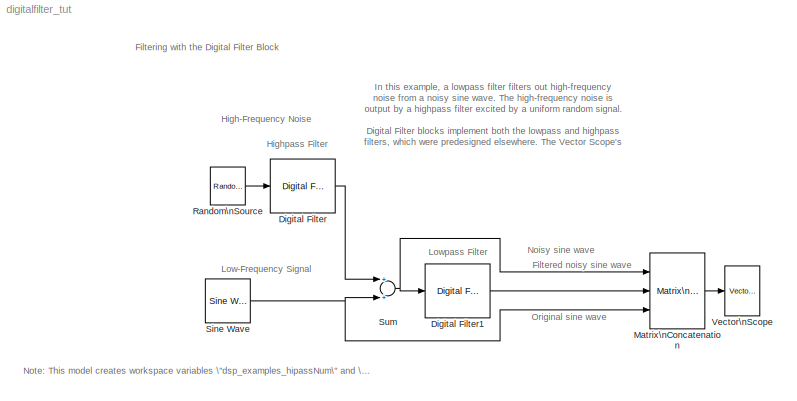
MODEL digitalfilter_tut
KIND model
CONFIG AbsTol = auto
CONFIG FixedStep = auto
CONFIG MaxStep = auto
CONFIG MinStep = auto
CONFIG PreLoadFcn = load digitalfilter_tut.mat; whos dsp_examples_*
CONFIG RelTol = 1e-3
CONFIG Solver = FixedStepDiscrete
CONFIG SolverMode = Auto
CONFIG StartTime = 0.0
CONFIG StopTime = 2
BLOCK [Reference] Digital Filter  REF=dsparch4/Digital Filter
  AllPoleFiltStruct = Direct form
  BiQuadCoeffs = [1 0.3 0.4 1 0.1 0.2]
  CoeffSource = Specify via dialog
  DenCoeffs = [1 0.1]
  FIRFiltStruct = Direct form
  FiltPerSampPopup = One filter per frame
  IC = 0
  ICden = 0
  ICnum = 0
  IIRFiltStruct = Direct form II transposed
  LatticeCoeffs = [0.2 0.4]
  NumCoeffs = dsp_examples_hipassNum
  Ports = [1, 1]
  SourceBlock = dsparch4/Digital Filter
  SourceType = Digital Filter
  TypePopup = FIR (all zeros)
  denIgnore = on
BLOCK [Reference] Digital Filter1  REF=dsparch4/Digital Filter
  AllPoleFiltStruct = Direct form
  BiQuadCoeffs = [1 0.3 0.4 1 0.1 0.2]
  CoeffSource = Specify via dialog
  DenCoeffs = [1 0.1]
  FIRFiltStruct = Direct form
  FiltPerSampPopup = One filter per frame
  IC = 0
  ICden = 0
  ICnum = 0
  IIRFiltStruct = Direct form II transposed
  LatticeCoeffs = [0.2 0.4]
  NumCoeffs = dsp_examples_lopassNum
  Ports = [1, 1]
  SourceBlock = dsparch4/Digital Filter
  SourceType = Digital Filter
  TypePopup = FIR (all zeros)
  denIgnore = on
BLOCK [Reference] Matrix\nConcatenation  REF=simulink/Math\nOperations/Matrix\nConcatenation
  Ports = [3, 1]
  SourceBlock = simulink/Math\nOperations/Matrix\nConcatenation
  SourceType = Matrix Concatenation
  catMethod = Horizontal
  numInports = 3
BLOCK [Reference] Random\nSource  REF=dspsrcs4/Random\nSource
  CltLength = 12
  DataType = Double
  Diagnostics = AllowInheritedTsInSrc
  Inherit = off
  Max = 4
  Mean = 0
  Min = 0
  NormMethod = Ziggurat
  OutComplex = Real
  Ports = [0, 1]
  RepMode = Not repeatable
  SampFrame = 50
  SampMode = Discrete
  SampTime = 1/1000
  Seed = 1
  SourceBlock = dspsrcs4/Random\nSource
  SourceType = Random Source
  SrcType = Uniform
  UserData = DataTag0
  UserDataPersistent = on
  Var = 1
BLOCK [Reference] Sine Wave  REF=dspsrcs4/Sine Wave
  Amplitude = 1
  CompMethod = Trigonometric fcn
  Frequency = 75
  OutComplex = Real
  Phase = 0
  Ports = [0, 1]
  ResetState = Restart at time zero
  SampleMode = Discrete
  SampleTime = 1/1000
  SamplesPerFrame = 50
  SourceBlock = dspsrcs4/Sine Wave
  SourceType = Sine Wave
  TableSize = Speed
  additionalParams = off
  dataType = double
  fracBitsMode = User-defined
  numFracBits = 14
  udDataType = sfix(16)
  wordLen = 16
BLOCK [Sum] Sum
  Ports = [2, 1]
BLOCK [Reference] Vector\nScope  REF=dspsnks4/Vector\nScope
  AxisGrid = on
  AxisLegend = on
  AxisProperties = off
  AxisZoom = off
  DisplayProperties = off
  Domain = Time
  FigPos = [386 364 548 328]
  FrameNumber = on
  HorizSpan = 1
  InheritXIncr = on
  LineColors = |[1 0 0]|[0 0 1]
  LineMarkers = None|diamond|*
  LineProperties = off
  LineStyles = -||None
  Memory = off
  OpenScopeAtSimStart = on
  OpenScopeImmediately = off
  Ports = [1]
  ScopeProperties = on
  SourceBlock = dspsnks4/Vector\nScope
  SourceType = Vector Scope
  XIncr = 1
  XLabel = Time
  XRange = [0...Fs/2]
  XUnits = Hertz
  YLabel = Amplitude
  YMax = 10
  YMin = -10
  YUnits = dB
ANNOTATION (root): \n\n\n\n\n\n\n
ANNOTATION (root): Filtered noisy sine wave
ANNOTATION (root): Filtering with the Digital Filter Block
ANNOTATION (root): High-Frequency Noise
ANNOTATION (root): Highpass Filter
ANNOTATION (root): In this example, a lowpass filter filters out high-frequency \nnoise from a noisy sine wave. The high-frequency noise is\noutput by a highpass filter excited by a uniform random signal.\n\nDigital Filter blocks implement both the lowpass and highpass \nfilters, which were predesigned elsewhere. The Vector Scope's \ndisplay shows the original sine wave, the noisy sine wave, and \nthe filtered noisy...<+26ch>
ANNOTATION (root): Low-Frequency Signal
ANNOTATION (root): Lowpass Filter
ANNOTATION (root): Noisy sine wave
ANNOTATION (root): Note: This model creates workspace variables \"dsp_examples_hipassNum\" and \"dsp_examples_lopassNum\"
ANNOTATION (root): Original sine wave
LINE Digital Filter1:1 -> Matrix\nConcatenation:2
LINE Digital Filter:1 -> Sum:1
LINE Matrix\nConcatenation:1 -> Vector\nScope:1
LINE Random\nSource:1 -> Digital Filter:1
NET Sine Wave:1 -> Matrix\nConcatenation:3, Sum:2
NET Sum:1 -> Digital Filter1:1, Matrix\nConcatenation:1
note: NET lines group one-source signal fan-out (src -> all destinations, sorted); 1:1 wires keep LINE
